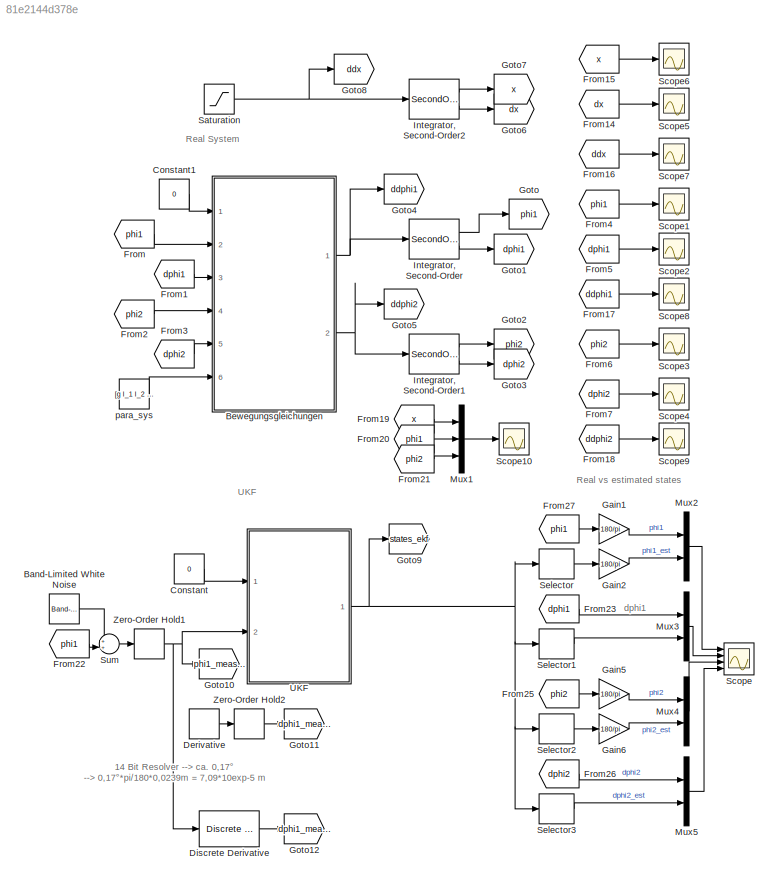
MODEL slx_81e2144d378e
KIND model
CONFIG AbsTol = auto
CONFIG FixedStep = T_s
CONFIG MaxStep = auto
CONFIG MinStep = auto
CONFIG RelTol = 1e-3
CONFIG SampleTimeConstraint = Unconstrained
CONFIG Solver = FixedStepAuto
CONFIG SolverMode = Auto
CONFIG SolverName = FixedStepAuto
CONFIG StartTime = 0.0
CONFIG StopTime = 5
BLOCK [Reference] Band-Limited White Noise  REF=simulink/Sources/Band-Limited
White Noise
  Commented = on
  Ports = [0, 1]
  SourceBlock = simulink/Sources/Band-Limited\nWhite Noise
  SourceType = Band-Limited White Noise.
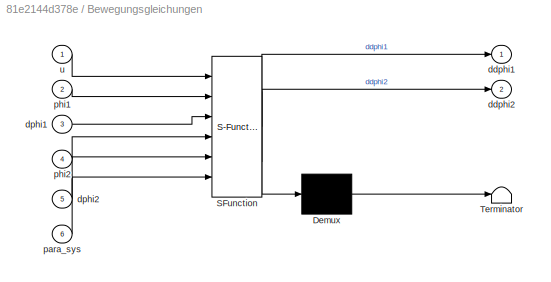
BLOCK [SubSystem] Bewegungsgleichungen
  ErrorFcn = Stateflow.Translate.translate
  PermitHierarchicalResolution = ExplicitOnly
  Ports = [6, 2]
  RequestExecContextInheritance = off
  SFBlockType = MATLAB Function
  TreatAsAtomicUnit = on
  Variant = off
BLOCK [Demux] Bewegungsgleichungen/ Demux 
  Outputs = 1
  Ports = [1, 1]
BLOCK [S-Function] Bewegungsgleichungen/ SFunction 
  EnableBusSupport = on
  FunctionName = sf_sfun
  PortCounts = [6 3]
  Ports = [6, 3]
  SFunctionDeploymentMode = off
  Tag = Stateflow S-Function dp_UKF 5
BLOCK [Terminator] Bewegungsgleichungen/ Terminator 
BLOCK [Outport] Bewegungsgleichungen/ddphi1
  IconDisplay = Port number
BLOCK [Outport] Bewegungsgleichungen/ddphi2
  IconDisplay = Port number
  Port = 2
BLOCK [Inport] Bewegungsgleichungen/dphi1
  IconDisplay = Port number
  Port = 3
BLOCK [Inport] Bewegungsgleichungen/dphi2
  IconDisplay = Port number
  Port = 5
BLOCK [Inport] Bewegungsgleichungen/para_sys
  IconDisplay = Port number
  Port = 6
BLOCK [Inport] Bewegungsgleichungen/phi1
  IconDisplay = Port number
  Port = 2
BLOCK [Inport] Bewegungsgleichungen/phi2
  IconDisplay = Port number
  Port = 4
BLOCK [Inport] Bewegungsgleichungen/u
  IconDisplay = Port number
BLOCK [Constant] Constant
  SampleTime = T_s
  Value = 0
BLOCK [Constant] Constant1
  SampleTime = T_s
  Value = 0
BLOCK [Derivative] Derivative
  Commented = on
BLOCK [Reference] Discrete Derivative  REF=simulink/Discrete/Discrete Derivative
  Ports = [1, 1]
  SourceBlock = simulink/Discrete/Discrete Derivative
  SourceType = Discrete Derivative
BLOCK [From] From
  GotoTag = phi1
BLOCK [From] From1
  GotoTag = dphi1
BLOCK [From] From14
  GotoTag = dx
BLOCK [From] From15
  GotoTag = x
BLOCK [From] From16
  GotoTag = ddx
BLOCK [From] From17
  GotoTag = ddphi1
BLOCK [From] From18
  GotoTag = ddphi2
BLOCK [From] From19
  GotoTag = x
BLOCK [From] From2
  GotoTag = phi2
BLOCK [From] From20
  GotoTag = phi1
BLOCK [From] From21
  GotoTag = phi2
BLOCK [From] From22
  GotoTag = phi1
BLOCK [From] From23
  GotoTag = dphi1
BLOCK [From] From25
  GotoTag = phi2
BLOCK [From] From26
  GotoTag = dphi2
BLOCK [From] From27
  GotoTag = phi1
BLOCK [From] From3
  GotoTag = dphi2
BLOCK [From] From4
  GotoTag = phi1
BLOCK [From] From5
  GotoTag = dphi1
BLOCK [From] From6
  GotoTag = phi2
BLOCK [From] From7
  GotoTag = dphi2
BLOCK [Gain] Gain1
  Gain = 180/pi
  OutDataTypeStr = Inherit: Inherit via internal rule
  ParamDataTypeStr = Inherit: Inherit via internal rule
  SaturateOnIntegerOverflow = off
BLOCK [Gain] Gain2
  Gain = 180/pi
  OutDataTypeStr = Inherit: Inherit via internal rule
  ParamDataTypeStr = Inherit: Inherit via internal rule
  SaturateOnIntegerOverflow = off
BLOCK [Gain] Gain5
  Gain = 180/pi
  OutDataTypeStr = Inherit: Inherit via internal rule
  ParamDataTypeStr = Inherit: Inherit via internal rule
  SaturateOnIntegerOverflow = off
BLOCK [Gain] Gain6
  Gain = 180/pi
  OutDataTypeStr = Inherit: Inherit via internal rule
  ParamDataTypeStr = Inherit: Inherit via internal rule
  SaturateOnIntegerOverflow = off
BLOCK [Goto] Goto
  GotoTag = phi1
BLOCK [Goto] Goto1
  GotoTag = dphi1
BLOCK [Goto] Goto10
  GotoTag = phi1_measure
BLOCK [Goto] Goto11
  Commented = on
  GotoTag = dphi1_measure
BLOCK [Goto] Goto12
  GotoTag = dphi1_measure
BLOCK [Goto] Goto2
  GotoTag = phi2
BLOCK [Goto] Goto3
  GotoTag = dphi2
BLOCK [Goto] Goto4
  GotoTag = ddphi1
BLOCK [Goto] Goto5
  GotoTag = ddphi2
BLOCK [Goto] Goto6
  Commented = on
  GotoTag = dx
BLOCK [Goto] Goto7
  Commented = on
  GotoTag = x
BLOCK [Goto] Goto8
  Commented = on
  GotoTag = ddx
BLOCK [Goto] Goto9
  GotoTag = states_ekf
BLOCK [SecondOrderIntegrator] Integrator, Second-Order
  ICDXDT = dphi1_0
  ICX = phi1_0
  Ports = [1, 2]
BLOCK [SecondOrderIntegrator] Integrator, Second-Order1
  ICDXDT = dphi2_0
  ICX = phi2_0
  Ports = [1, 2]
BLOCK [SecondOrderIntegrator] Integrator, Second-Order2
  Commented = on
  ICDXDT = dx_0
  ICX = x_0
  LimitDXDT = on
  LimitX = on
  LowerLimitDXDT = -5
  LowerLimitX = -0.2
  Ports = [1, 2]
  UpperLimitDXDT = 5
  UpperLimitX = 0.2
BLOCK [Mux] Mux1
  DisplayOption = bar
  Inputs = 3
  Ports = [3, 1]
BLOCK [Mux] Mux2
  DisplayOption = bar
  Inputs = 2
  Ports = [2, 1]
BLOCK [Mux] Mux3
  DisplayOption = bar
  Inputs = 2
  Ports = [2, 1]
BLOCK [Mux] Mux4
  DisplayOption = bar
  Inputs = 2
  Ports = [2, 1]
BLOCK [Mux] Mux5
  DisplayOption = bar
  Inputs = 2
  Ports = [2, 1]
BLOCK [Saturate] Saturation
  Commented = on
  InputPortMap = u0
  LowerLimit = -20
  Ports = [1, 1]
  UpperLimit = 20
BLOCK [Scope] Scope
  NumInputPorts = 4
  Ports = [4]
  ScopeSpecificationString = Simulink.scopes.TimeScopeBlockCfg('CurrentConfiguration', extmgr.ConfigurationSet(extmgr.Configuration('Core','General UI',true),extmgr.Configuration('Core','Source UI',true),extmgr.Configuration('Sources','WiredSimulink',true,'DataLoggingVariableName','ScopeData1'),extmgr.Configuration('Visuals','Time Domain',true,'SerializedDisplays',{struct('MinYLimReal','-34.37919','MaxYLimReal','339.493','YLa...<+3499ch>
BLOCK [Scope] Scope1
  Ports = [1]
  ScopeSpecificationString = Simulink.scopes.TimeScopeBlockCfg('CurrentConfiguration', extmgr.ConfigurationSet(extmgr.Configuration('Core','General UI',true),extmgr.Configuration('Core','Source UI',true),extmgr.Configuration('Sources','WiredSimulink',true,'DataLoggingVariableName','ScopeData1'),extmgr.Configuration('Visuals','Time Domain',true,'SerializedDisplays',{struct('MinYLimReal','0.01175','MaxYLimReal','0.41929','YLabe...<+1403ch>
BLOCK [Scope] Scope10
  Ports = [1]
  ScopeSpecificationString = Simulink.scopes.TimeScopeBlockCfg('CurrentConfiguration', extmgr.ConfigurationSet(extmgr.Configuration('Core','General UI',true),extmgr.Configuration('Core','Source UI',true),extmgr.Configuration('Sources','WiredSimulink',true,'DataLoggingVariableName','ScopeData9'),extmgr.Configuration('Visuals','Time Domain',true,'SerializedDisplays',{struct('MinYLimReal','-0.10904','MaxYLimReal','0.07045','YLab...<+1516ch>
BLOCK [Scope] Scope2
  Ports = [1]
  ScopeSpecificationString = Simulink.scopes.TimeScopeBlockCfg('CurrentConfiguration', extmgr.ConfigurationSet(extmgr.Configuration('Core','General UI',true),extmgr.Configuration('Core','Source UI',true),extmgr.Configuration('Sources','WiredSimulink',true),extmgr.Configuration('Visuals','Time Domain',true,'SerializedDisplays',{struct('MinYLimReal','-2.1222','MaxYLimReal','0.99469','YLabelReal','','MinYLimMag','0.00000','MaxYL...<+1340ch>
BLOCK [Scope] Scope3
  Ports = [1]
  ScopeSpecificationString = Simulink.scopes.TimeScopeBlockCfg('CurrentConfiguration', extmgr.ConfigurationSet(extmgr.Configuration('Core','General UI',true),extmgr.Configuration('Core','Source UI',true),extmgr.Configuration('Sources','WiredSimulink',true,'DataLoggingVariableName','ScopeData2'),extmgr.Configuration('Visuals','Time Domain',true,'SerializedDisplays',{struct('MinYLimReal','-0.05116','MaxYLimReal','0.03068','YLab...<+1438ch>
BLOCK [Scope] Scope4
  Ports = [1]
  ScopeSpecificationString = Simulink.scopes.TimeScopeBlockCfg('CurrentConfiguration', extmgr.ConfigurationSet(extmgr.Configuration('Core','General UI',true),extmgr.Configuration('Core','Source UI',true),extmgr.Configuration('Sources','WiredSimulink',true,'DataLoggingVariableName','ScopeData3'),extmgr.Configuration('Visuals','Time Domain',true,'SerializedDisplays',{struct('MinYLimReal','-0.53661','MaxYLimReal','0.41155','YLab...<+1409ch>
BLOCK [Scope] Scope5
  Ports = [1]
  ScopeSpecificationString = Simulink.scopes.TimeScopeBlockCfg('CurrentConfiguration', extmgr.ConfigurationSet(extmgr.Configuration('Core','General UI',true),extmgr.Configuration('Core','Source UI',true),extmgr.Configuration('Sources','WiredSimulink',true,'DataLoggingVariableName','ScopeData4'),extmgr.Configuration('Visuals','Time Domain',true,'SerializedDisplays',{struct('MinYLimReal','-0.42798','MaxYLimReal','0.30635','YLab...<+1409ch>
BLOCK [Scope] Scope6
  Ports = [1]
  ScopeSpecificationString = Simulink.scopes.TimeScopeBlockCfg('CurrentConfiguration', extmgr.ConfigurationSet(extmgr.Configuration('Core','General UI',true),extmgr.Configuration('Core','Source UI',true),extmgr.Configuration('Sources','WiredSimulink',true,'DataLoggingVariableName','ScopeData5'),extmgr.Configuration('Visuals','Time Domain',true,'SerializedDisplays',{struct('MinYLimReal','-1.00000','MaxYLimReal','1.00000','YLab...<+1409ch>
BLOCK [Scope] Scope7
  Ports = [1]
  ScopeSpecificationString = Simulink.scopes.TimeScopeBlockCfg('CurrentConfiguration', extmgr.ConfigurationSet(extmgr.Configuration('Core','General UI',true),extmgr.Configuration('Core','Source UI',true),extmgr.Configuration('Sources','WiredSimulink',true,'DataLoggingVariableName','ScopeData6'),extmgr.Configuration('Visuals','Time Domain',true,'SerializedDisplays',{struct('MinYLimReal','-22.71251','MaxYLimReal','8.26843','YLa...<+1415ch>
BLOCK [Scope] Scope8
  Ports = [1]
  ScopeSpecificationString = Simulink.scopes.TimeScopeBlockCfg('CurrentConfiguration', extmgr.ConfigurationSet(extmgr.Configuration('Core','General UI',true),extmgr.Configuration('Core','Source UI',true),extmgr.Configuration('Sources','WiredSimulink',true,'DataLoggingVariableName','ScopeData7'),extmgr.Configuration('Visuals','Time Domain',true,'SerializedDisplays',{struct('MinYLimReal','-1.30011','MaxYLimReal','0.46672','YLab...<+1383ch>
BLOCK [Scope] Scope9
  Ports = [1]
  ScopeSpecificationString = Simulink.scopes.TimeScopeBlockCfg('CurrentConfiguration', extmgr.ConfigurationSet(extmgr.Configuration('Core','General UI',true),extmgr.Configuration('Core','Source UI',true),extmgr.Configuration('Sources','WiredSimulink',true,'DataLoggingVariableName','ScopeData8'),extmgr.Configuration('Visuals','Time Domain',true,'SerializedDisplays',{struct('MinYLimReal','-11.90778','MaxYLimReal','11.95938','YL...<+1371ch>
BLOCK [Selector] Selector
  IndexOptions = Index vector (dialog)
  Indices = [1]
  InputPortWidth = 4
  OutputSizes = 1
  Ports = [1, 1]
BLOCK [Selector] Selector1
  IndexOptions = Index vector (dialog)
  Indices = [2]
  InputPortWidth = 4
  OutputSizes = 1
  Ports = [1, 1]
BLOCK [Selector] Selector2
  IndexOptions = Index vector (dialog)
  Indices = [3]
  InputPortWidth = 4
  OutputSizes = 1
  Ports = [1, 1]
BLOCK [Selector] Selector3
  IndexOptions = Index vector (dialog)
  Indices = [4]
  InputPortWidth = 4
  OutputSizes = 1
  Ports = [1, 1]
BLOCK [Sum] Sum
  IconShape = round
  InputSameDT = off
  Inputs = ++|
  OutDataTypeStr = Inherit: Inherit via internal rule
  Ports = [2, 1]
  SaturateOnIntegerOverflow = off
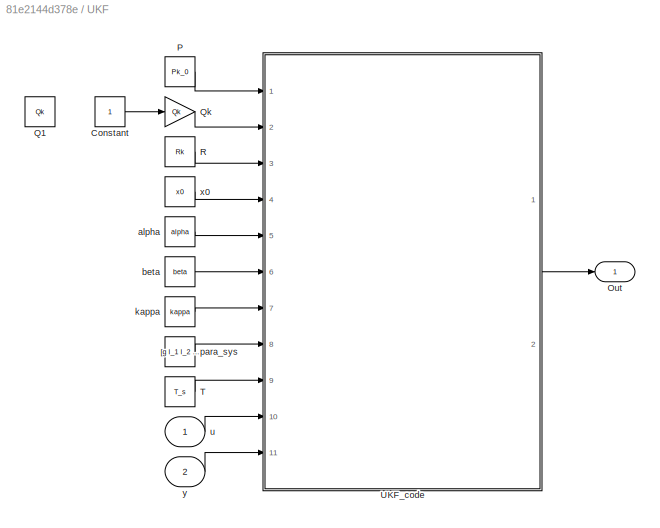
BLOCK [SubSystem] UKF
  Ports = [2, 1]
  RequestExecContextInheritance = off
  Variant = off
BLOCK [Constant] UKF/Constant
BLOCK [Outport] UKF/Out
  IconDisplay = Port number
BLOCK [Constant] UKF/P
  Value = Pk_0
BLOCK [Constant] UKF/Q1
  Commented = on
  Value = Qk
BLOCK [Gain] UKF/Qk
  Gain = Qk
  OutDataTypeStr = Inherit: Inherit via internal rule
  ParamDataTypeStr = Inherit: Inherit via internal rule
  SaturateOnIntegerOverflow = off
BLOCK [Constant] UKF/R
  Value = Rk
BLOCK [Constant] UKF/T
  Value = T_s
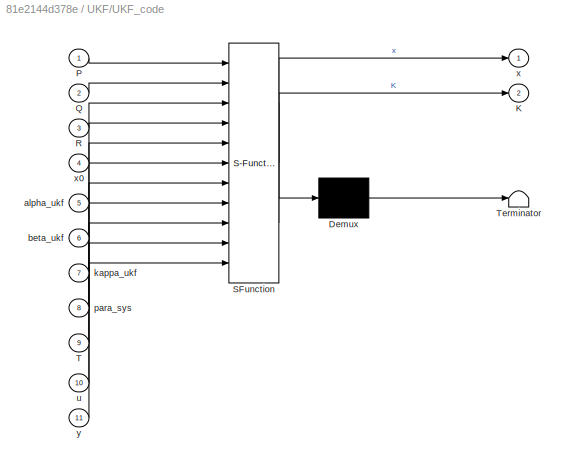
BLOCK [SubSystem] UKF/UKF_code
  ErrorFcn = Stateflow.Translate.translate
  PermitHierarchicalResolution = ExplicitOnly
  Ports = [11, 2]
  RequestExecContextInheritance = off
  SFBlockType = MATLAB Function
  TreatAsAtomicUnit = on
  Variant = off
BLOCK [Demux] UKF/UKF_code/ Demux 
  Outputs = 1
  Ports = [1, 1]
BLOCK [S-Function] UKF/UKF_code/ SFunction 
  EnableBusSupport = on
  FunctionName = sf_sfun
  PortCounts = [11 3]
  Ports = [11, 3]
  SFunctionDeploymentMode = off
  Tag = Stateflow S-Function dp_UKF 1
BLOCK [Terminator] UKF/UKF_code/ Terminator 
BLOCK [Outport] UKF/UKF_code/K
  IconDisplay = Port number
  Port = 2
BLOCK [Inport] UKF/UKF_code/P
  IconDisplay = Port number
BLOCK [Inport] UKF/UKF_code/Q
  IconDisplay = Port number
  Port = 2
BLOCK [Inport] UKF/UKF_code/R
  IconDisplay = Port number
  Port = 3
BLOCK [Inport] UKF/UKF_code/T
  IconDisplay = Port number
  Port = 9
BLOCK [Inport] UKF/UKF_code/alpha_ukf
  IconDisplay = Port number
  Port = 5
BLOCK [Inport] UKF/UKF_code/beta_ukf
  IconDisplay = Port number
  Port = 6
BLOCK [Inport] UKF/UKF_code/kappa_ukf
  IconDisplay = Port number
  Port = 7
BLOCK [Inport] UKF/UKF_code/para_sys
  IconDisplay = Port number
  Port = 8
BLOCK [Inport] UKF/UKF_code/u
  IconDisplay = Port number
  Port = 10
BLOCK [Outport] UKF/UKF_code/x
  IconDisplay = Port number
BLOCK [Inport] UKF/UKF_code/x0
  IconDisplay = Port number
  Port = 4
BLOCK [Inport] UKF/UKF_code/y
  IconDisplay = Port number
  Port = 11
BLOCK [Constant] UKF/alpha
  Value = alpha
BLOCK [Constant] UKF/beta
  Value = beta
BLOCK [Constant] UKF/kappa
  Value = kappa
BLOCK [Constant] UKF/para_sys
  Value = [g l_1 l_2 m_1 m_2 m_3 d_p1 d_p2]
BLOCK [Inport] UKF/u
  IconDisplay = Port number
BLOCK [Constant] UKF/x0
  Value = x0
BLOCK [Inport] UKF/y
  IconDisplay = Port number
  Port = 2
BLOCK [ZeroOrderHold] Zero-Order Hold1
  SampleTime = T_s
BLOCK [ZeroOrderHold] Zero-Order Hold2
  Commented = on
  SampleTime = T_s
BLOCK [Constant] para_sys
  Value = [g l_1 l_2 m_1 m_2 m_3 d_p1 d_p2]
ANNOTATION (root): 14 Bit Resolver --> ca. 0,17° --> 0,17°*pi/180*0,0239m = 7,09*10exp-5 m
ANNOTATION (root): Real System
ANNOTATION (root): UKF
ANNOTATION (root): Real vs estimated states
ANNOTATION (root): dphi1
LINE Band-Limited White Noise:1 -> Sum:1
NET Bewegungsgleichungen:1 -> Goto4:1, Integrator, Second-Order:1
NET Bewegungsgleichungen:2 -> Goto5:1, Integrator, Second-Order1:1
LINE Constant1:1 -> Bewegungsgleichungen:1
LINE Constant:1 -> UKF:1
LINE Derivative:1 -> Zero-Order Hold2:1
LINE Discrete Derivative:1 -> Goto12:1
LINE From14:1 -> Scope5:1
LINE From15:1 -> Scope6:1
LINE From16:1 -> Scope7:1
LINE From17:1 -> Scope8:1
LINE From18:1 -> Scope9:1
LINE From19:1 -> Mux1:1
LINE From1:1 -> Bewegungsgleichungen:3
LINE From20:1 -> Mux1:2
LINE From21:1 -> Mux1:3
LINE From22:1 -> Sum:2
LINE From23:1 -> Mux3:1
LINE From25:1 -> Gain5:1
LINE From26:1 -> Mux5:1
LINE From27:1 -> Gain1:1
LINE From2:1 -> Bewegungsgleichungen:4
LINE From3:1 -> Bewegungsgleichungen:5
LINE From4:1 -> Scope1:1
LINE From5:1 -> Scope2:1
LINE From6:1 -> Scope3:1
LINE From7:1 -> Scope4:1
LINE From:1 -> Bewegungsgleichungen:2
LINE Gain1:1 -> Mux2:1
LINE Gain2:1 -> Mux2:2
LINE Gain5:1 -> Mux4:1
LINE Gain6:1 -> Mux4:2
LINE Integrator, Second-Order1:1 -> Goto2:1
LINE Integrator, Second-Order1:2 -> Goto3:1
LINE Integrator, Second-Order2:1 -> Goto7:1
LINE Integrator, Second-Order2:2 -> Goto6:1
LINE Integrator, Second-Order:1 -> Goto:1
LINE Integrator, Second-Order:2 -> Goto1:1
LINE Mux1:1 -> Scope10:1
LINE Mux2:1 -> Scope:1
LINE Mux3:1 -> Scope:2
LINE Mux4:1 -> Scope:3
LINE Mux5:1 -> Scope:4
NET Saturation:1 -> Goto8:1, Integrator, Second-Order2:1
LINE Selector1:1 -> Mux3:2
LINE Selector2:1 -> Gain6:1
LINE Selector3:1 -> Mux5:2
LINE Selector:1 -> Gain2:1
LINE Sum:1 -> Zero-Order Hold1:1
LINE UKF/Constant:1 -> UKF/Qk:1
LINE UKF/P:1 -> UKF/UKF_code:1
LINE UKF/Qk:1 -> UKF/UKF_code:2
LINE UKF/R:1 -> UKF/UKF_code:3
LINE UKF/T:1 -> UKF/UKF_code:9
LINE UKF/UKF_code:1 -> UKF/Out:1
LINE UKF/alpha:1 -> UKF/UKF_code:5
LINE UKF/beta:1 -> UKF/UKF_code:6
LINE UKF/kappa:1 -> UKF/UKF_code:7
LINE UKF/para_sys:1 -> UKF/UKF_code:8
LINE UKF/u:1 -> UKF/UKF_code:10
LINE UKF/x0:1 -> UKF/UKF_code:4
LINE UKF/y:1 -> UKF/UKF_code:11
NET UKF:1 -> Goto9:1, Selector1:1, Selector2:1, Selector3:1, Selector:1
NET Zero-Order Hold1:1 -> Discrete Derivative:1, Goto10:1, UKF:2
LINE Zero-Order Hold2:1 -> Goto11:1
LINE para_sys:1 -> Bewegungsgleichungen:6
note: NET lines group one-source signal fan-out (src -> all destinations, sorted); 1:1 wires keep LINE
CHART UKF/UKF_code states=1 transitions=1
  STATE_LABEL 'eML_blk_kernel()'
  STATE_LABEL 'SCRIPT:\nfunction [x,K] = unscented_kalman_filter(P, Q, R, x0, alpha_ukf, beta_ukf, kappa_ukf, para_sys, T, u, y)\n% Unscented Kalman Filter (UKF) fuer nichtlineare Systeme\n% Das UKF praediziert den Zustand eines nichtliniearen Systems durch\n% Mittelung sog. Sigma Punkte. Dazu werden 2n+1 Sigmapunkte (moegliche\n% Zustaende des Systems) mittels Kovarianzmatrix P berechnet und fuer jeden\n% Sigmapunkt ...<+3608ch>'
CHART Bewegungsgleichungen states=1 transitions=1
  STATE_LABEL 'eML_blk_kernel()'
  STATE_LABEL 'SCRIPT:\nfunction [ddphi1, ddphi2] = pendel_1_2(u, phi1, dphi1, phi2, dphi2, para_sys)\n%#codegen\n\ng = para_sys(1);\nl_1 = para_sys(2);\nl_2 = para_sys(3);\nm_1 = para_sys(4);\nm_2 = para_sys(5);\nm_3 = para_sys(6);\nd_p1 = para_sys(7);\nd_p2 = para_sys(8);\n\nddphi1 = 1/(l_1^2*(9*cos(phi1-phi2)^2*m_2-4*m_1-12*m_2-12*m_3)*l_2)*(9*dphi1^2*cos(phi1-phi2)*sin(phi1-phi2)*l_1^2*l_2*m_2+6*m_2*l_1*l_2^2*sin(phi1-ph...<+1339ch>'
